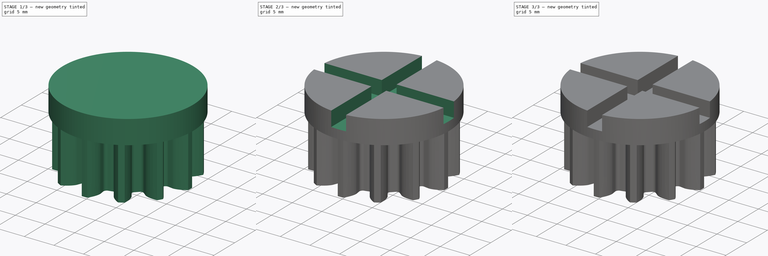
[diagram: build sequence overview — one tinted view per stage of 3, left to right]
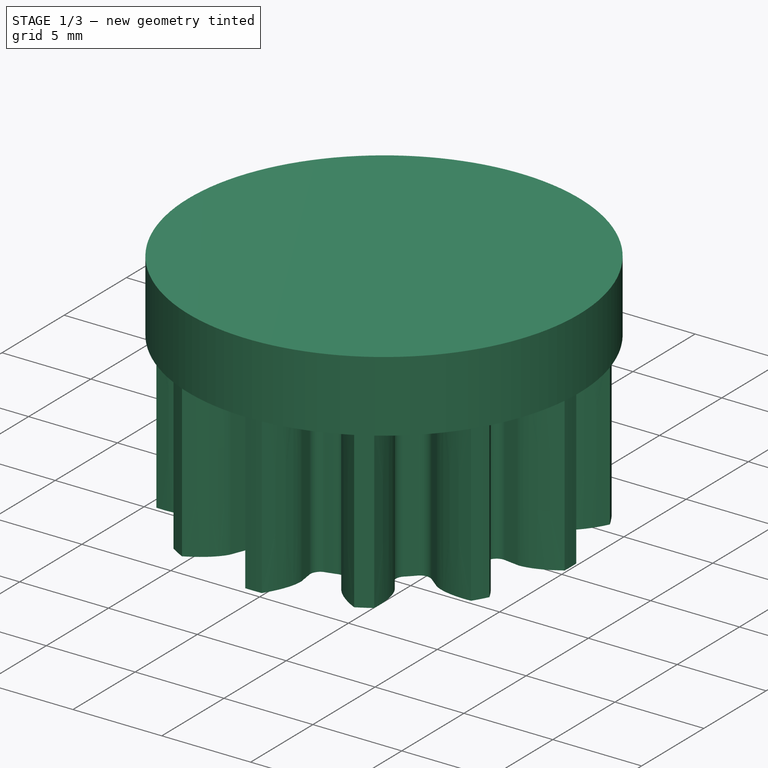
[diagram: stage 1 of 3 — iso view after this stage's code; geometry added in this stage tinted green]
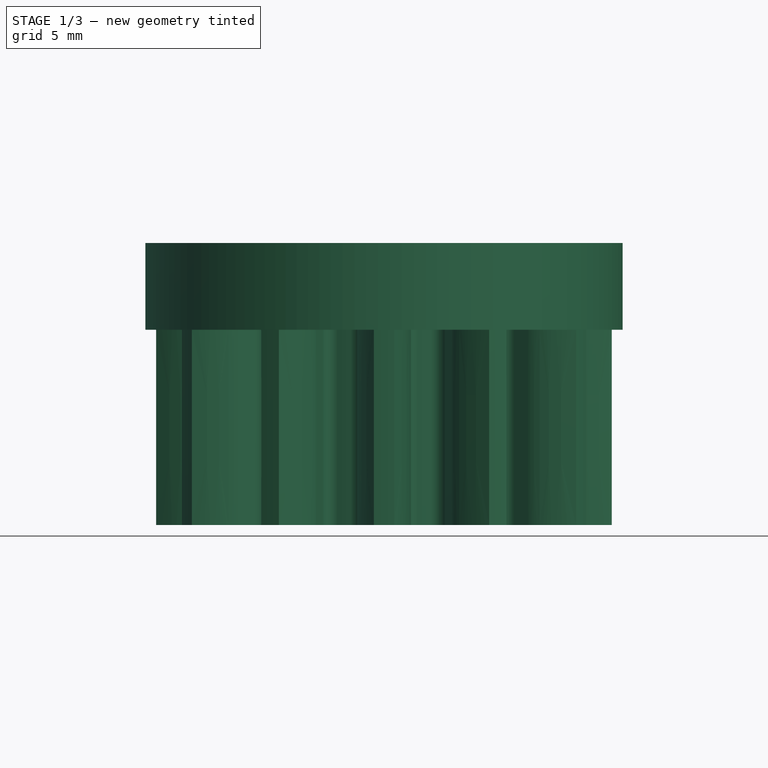
[diagram: stage 1 of 3 — front view after this stage's code; geometry added in this stage tinted green]
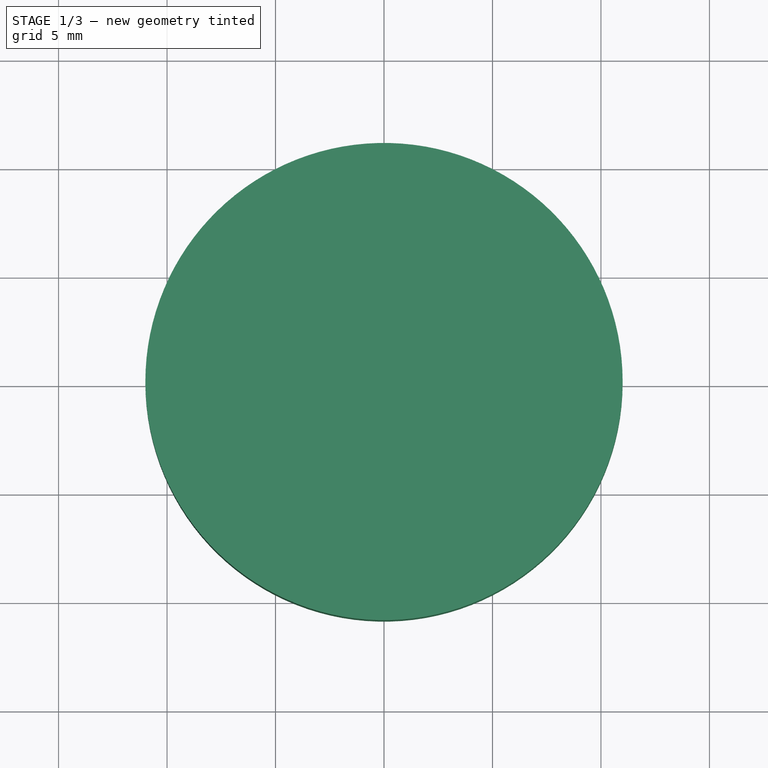
[diagram: stage 1 of 3 — top view after this stage's code; geometry added in this stage tinted green]
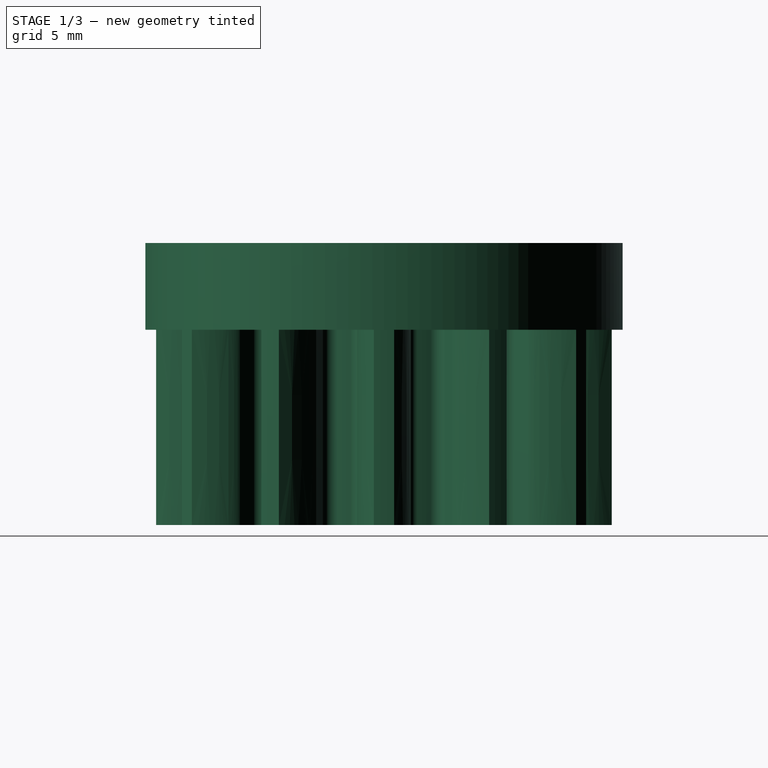
[diagram: stage 1 of 3 — right view after this stage's code; geometry added in this stage tinted green]
FCSTD DOCUMENT  (FreeCAD 0.16R6705 (Git))
Label: SunGear
License: All rights reserved
LicenseURL: http://en.wikipedia.org/wiki/All_rights_reserved
objects: Sketcher::SketchObject×5, PartDesign::Pocket×4, PartDesign::Pad×2, Part::Part2DObjectPython×1, PartDesign::Chamfer×1
note: 19 computed .brp shape members not serialized (recipe doc carries the construction recipe); baked Part::Feature solids carry a one-line shape summary decoded from their .brp

FEATURE [Part::Part2DObjectPython] InvoluteGear  # Draft 2D object (typed FeaturePython)
  ExternalGear = true
  HighPrecision = true
  Modules = 1.5
  NumberOfTeeth = 12
  PressureAngle = 20
FEATURE [PartDesign::Pad] Pad001
  Length = 9
  Length2 = 100
  Reversed = true
  Sketch = -> InvoluteGear
  Type = 0
FEATURE [Sketcher::SketchObject] Sketch
  Support = -> Pad001 [Face121]
  sketch-geometry (1):
    g0: Circle CenterX=0 CenterY=0 CenterZ=0 NormalX=0 NormalY=0 NormalZ=1 Radius=11
  constraints (2):
    c: Coincident(g0,g-1)
    c: Radius(g0) = 11
FEATURE [PartDesign::Pad] Pad
  Length = 4
  Length2 = 100
  Sketch = -> Sketch
  Type = 0
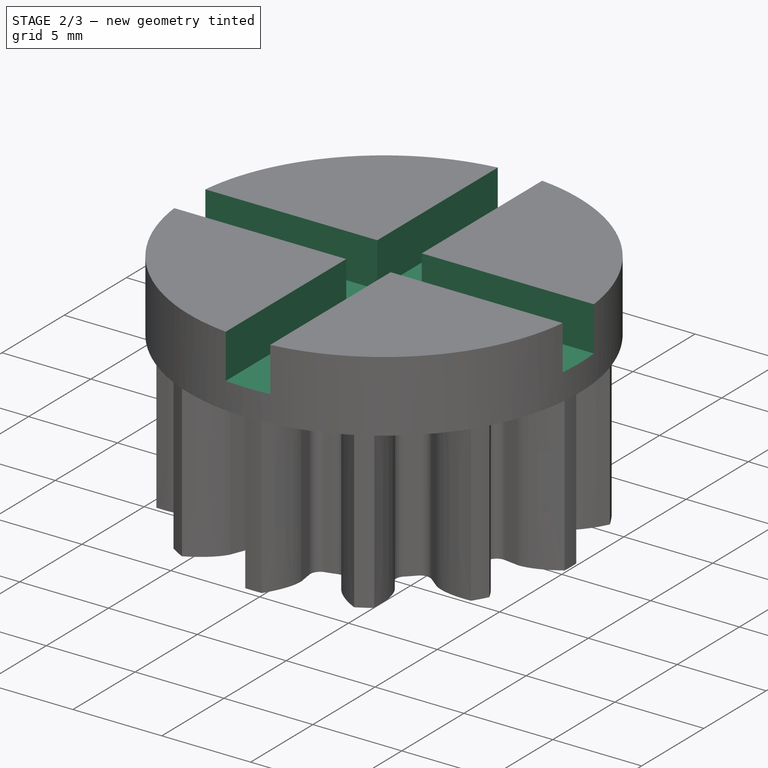
[diagram: stage 2 of 3 — iso view after this stage's code; geometry added in this stage tinted green]
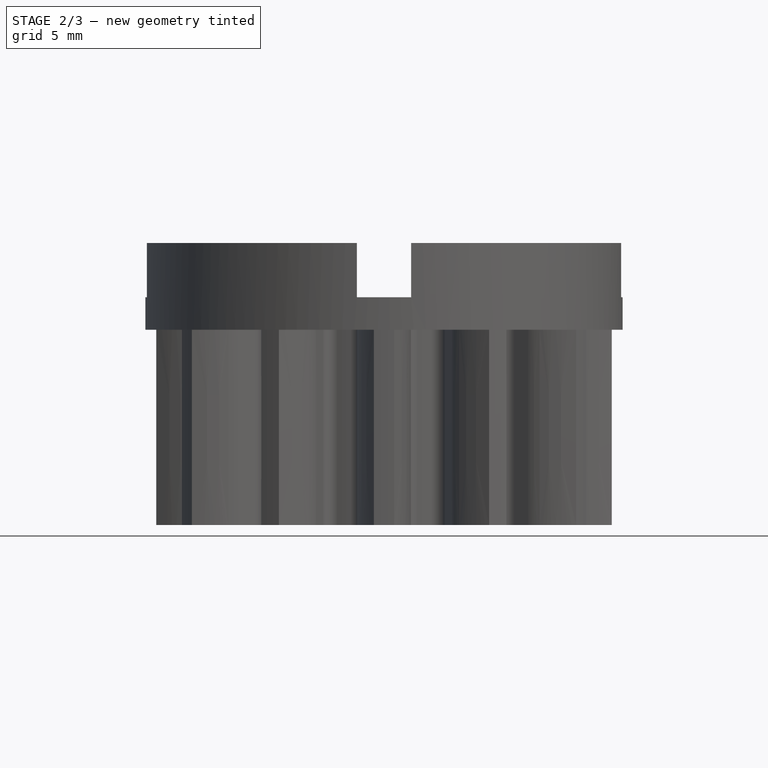
[diagram: stage 2 of 3 — front view after this stage's code; geometry added in this stage tinted green]
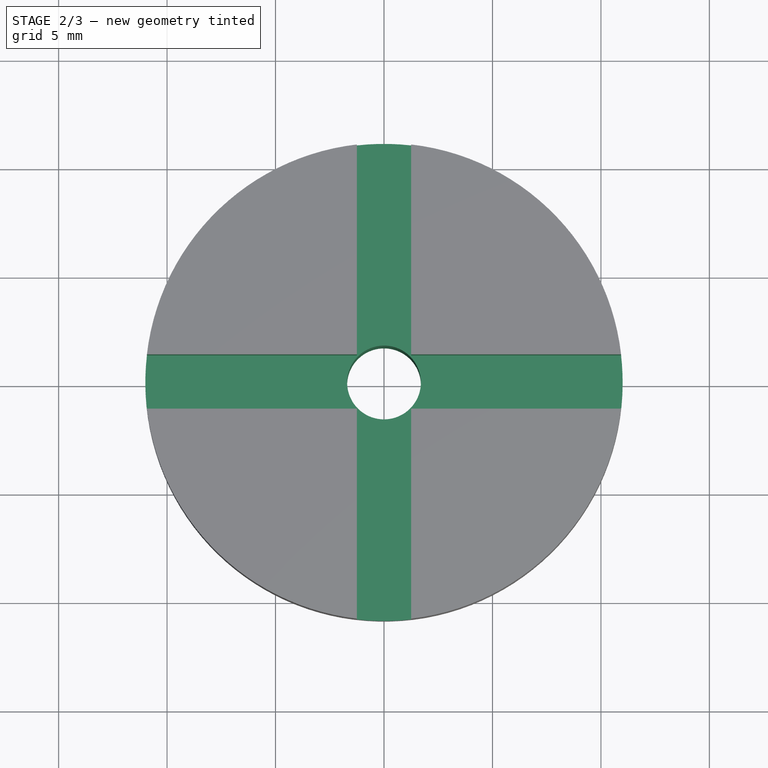
[diagram: stage 2 of 3 — top view after this stage's code; geometry added in this stage tinted green]
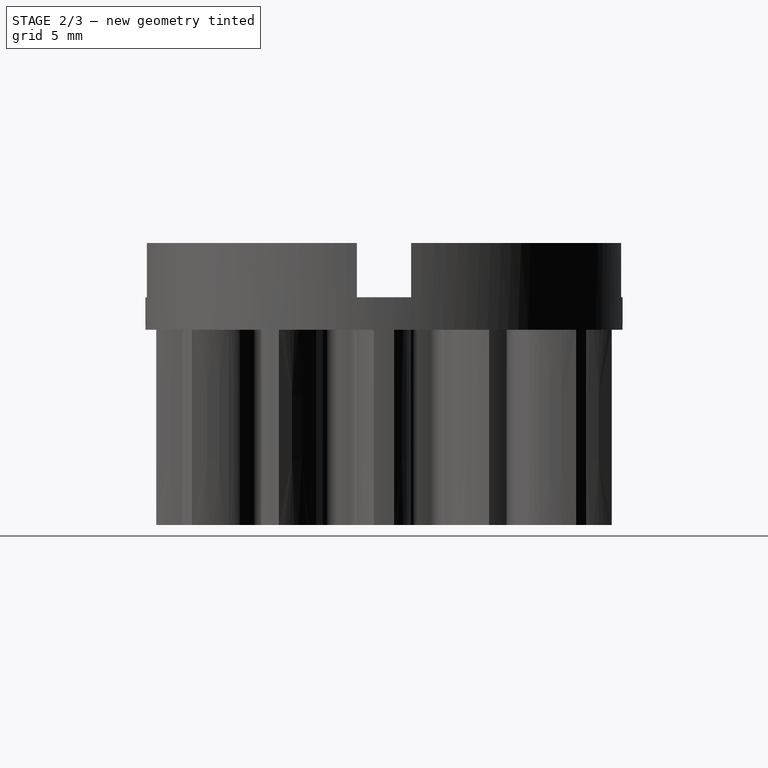
[diagram: stage 2 of 3 — right view after this stage's code; geometry added in this stage tinted green]
FEATURE [Sketcher::SketchObject] Sketch001  label="ScrewHole"
  Placement = pos=(0,0,-9) rot=(1,0,0;3.14159rad)
  Support = -> Pad [Face1]
  sketch-geometry (1):
    g0: Circle CenterX=0 CenterY=0 CenterZ=0 NormalX=0 NormalY=0 NormalZ=1 Radius=1.7
  constraints (2):
    c: Coincident(g0,g-1)
    c: Radius(g0) = 1.7
FEATURE [PartDesign::Pocket] Pocket
  Length = 5
  Sketch = -> Sketch001
  Type = 1
FEATURE [Sketcher::SketchObject] Sketch002  label="Lock"
  Placement = pos=(0,0,4) rot=(0,0,1;0rad)
  Support = -> Pocket [Face124]
  sketch-geometry (18):
    g0: LineSegment StartX=-14.9478 StartY=1.25 StartZ=0 EndX=-1.25 EndY=1.25 EndZ=0
    g1: LineSegment StartX=-1.25 StartY=1.25 StartZ=0 EndX=-1.25 EndY=14.9478 EndZ=0
    g2: LineSegment StartX=-1.25 StartY=14.9478 StartZ=0 EndX=1.25 EndY=14.9478 EndZ=0
    g3: LineSegment StartX=1.25 StartY=14.9478 StartZ=0 EndX=1.25 EndY=1.25 EndZ=0
    g4: LineSegment StartX=1.25 StartY=1.25 StartZ=0 EndX=14.9478 EndY=1.25 EndZ=0
    g5: LineSegment StartX=14.9478 StartY=1.25 StartZ=0 EndX=14.9478 EndY=-1.25 EndZ=0
    g6: LineSegment StartX=14.9478 StartY=-1.25 StartZ=0 EndX=1.25 EndY=-1.25 EndZ=0
    g7: LineSegment StartX=1.25 StartY=-1.25 StartZ=0 EndX=1.25 EndY=-14.9478 EndZ=0
    g8: LineSegment StartX=1.25 StartY=-14.9478 StartZ=0 EndX=-1.25 EndY=-14.9478 EndZ=0
    g9: LineSegment StartX=-1.25 StartY=-14.9478 StartZ=0 EndX=-1.25 EndY=-1.25 EndZ=0
    g10: LineSegment StartX=-1.25 StartY=-1.25 StartZ=0 EndX=-14.9478 EndY=-1.25 EndZ=0
    g11: LineSegment StartX=-14.9478 StartY=-1.25 StartZ=0 EndX=-14.9478 EndY=1.25 EndZ=0
    g12: LineSegment [constr] StartX=-1.25 StartY=1.25 StartZ=0 EndX=-1.25 EndY=-1.25 EndZ=0
    g13: LineSegment [constr] StartX=-1.25 StartY=-1.25 StartZ=0 EndX=1.25 EndY=-1.25 EndZ=0
    g14: LineSegment [constr] StartX=-1.25 StartY=1.25 StartZ=0 EndX=1.25 EndY=1.25 EndZ=0
    g15: LineSegment [constr] StartX=1.25 StartY=-1.25 StartZ=0 EndX=1.25 EndY=1.25 EndZ=0
    g16: LineSegment [constr] StartX=0 StartY=0 StartZ=0 EndX=1.25 EndY=1.25 EndZ=0
    g17: Circle [constr] CenterX=0 CenterY=0 CenterZ=0 NormalX=0 NormalY=0 NormalZ=1 Radius=15
  constraints (48):
    c: Coincident(g0,g1)
    c: Coincident(g1,g2)
    c: Coincident(g2,g3)
    c: Coincident(g3,g4)
    c: Horizontal(g4)
    c: Coincident(g4,g5)
    c: Vertical(g5)
    c: Coincident(g5,g6)
    c: Horizontal(g6)
    c: Coincident(g6,g7)
    c: Vertical(g7)
    c: Coincident(g7,g8)
    c: Coincident(g8,g9)
    c: Vertical(g9)
    c: Coincident(g9,g10)
    c: Horizontal(g10)
    c: Coincident(g10,g11)
    c: Coincident(g11,g0)
    c: Vertical(g1)
    c: Vertical(g3)
    c: Horizontal(g0)
    c: Vertical(g11)
    c: Horizontal(g2)
    c: Coincident(g12,g0)
    c: Coincident(g12,g9)
    c: Vertical(g12)
    c: Coincident(g13,g9)
    c: Coincident(g13,g6)
    c: Coincident(g14,g0)
    c: Coincident(g14,g3)
    c: Coincident(g15,g6)
    c: Coincident(g15,g3)
    c: Horizontal(g14)
    c: Vertical(g15)
    c: Horizontal(g13)
    c: Horizontal(g8)
    c: Symmetric(g5,g4,g-1)
    c: Symmetric(g1,g2,g-2)
    c: Coincident(g16,g-1)
    c: Coincident(g16,g3)
    c: Angle(g-1,g16) = 0.785398
    c: DistanceY(g10,g0) = 2.5
    c: Coincident(g17,g-1)
    c: PointOnObject(g2,g17)
    c: PointOnObject(g5,g17)
    c: Radius(g17) = 15
    c: PointOnObject(g0,g17)
    c: PointOnObject(g7,g17)
FEATURE [PartDesign::Pocket] Pocket001
  Length = 2.5
  Sketch = -> Sketch002
  Type = 0
FEATURE [Sketcher::SketchObject] Sketch003
  Placement = pos=(0,0,-9) rot=(1,0,0;3.14159rad)
  Support = -> Pocket001 [Face1]
  sketch-geometry (1):
    g0: Circle CenterX=0 CenterY=0 CenterZ=0 NormalX=0 NormalY=0 NormalZ=1 Radius=4
  constraints (2):
    c: Coincident(g0,g-1)
    c: Radius(g0) = 4
FEATURE [PartDesign::Pocket] Pocket002
  Length = 3
  Sketch = -> Sketch003
  Type = 0
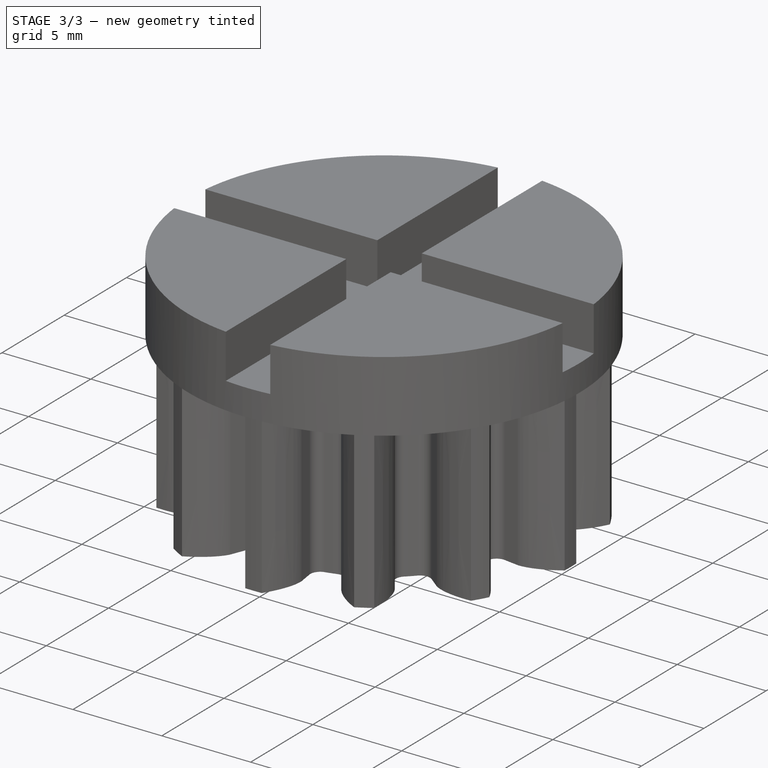
[diagram: stage 3 of 3 — iso view after this stage's code; geometry added in this stage tinted green]
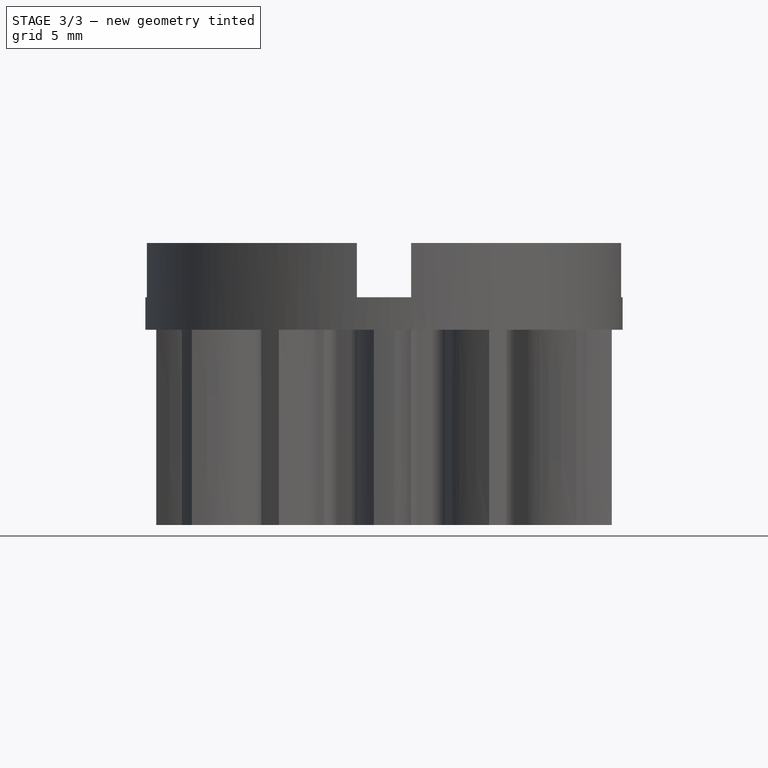
[diagram: stage 3 of 3 — front view after this stage's code; geometry added in this stage tinted green]
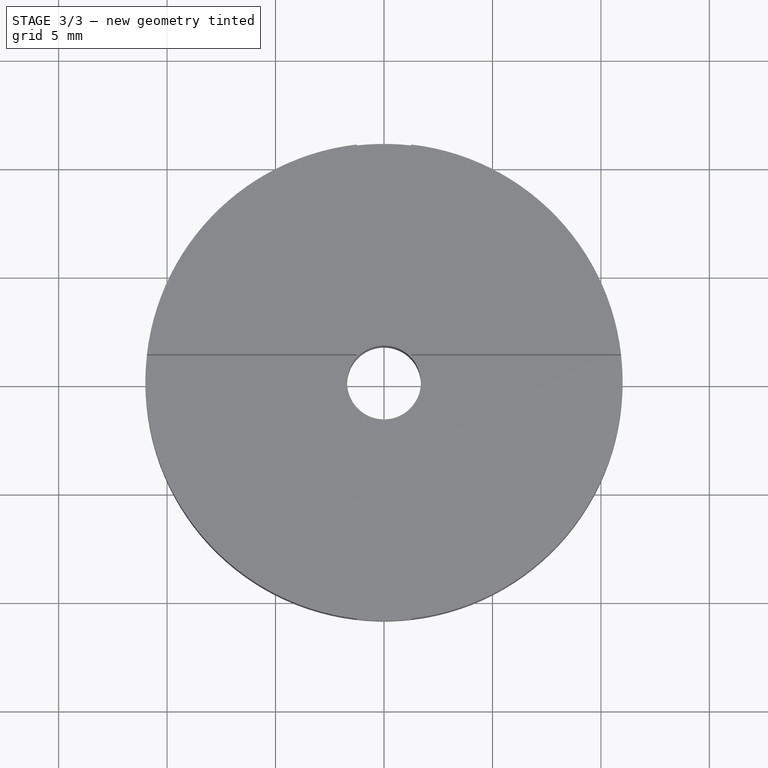
[diagram: stage 3 of 3 — top view after this stage's code; geometry added in this stage tinted green]
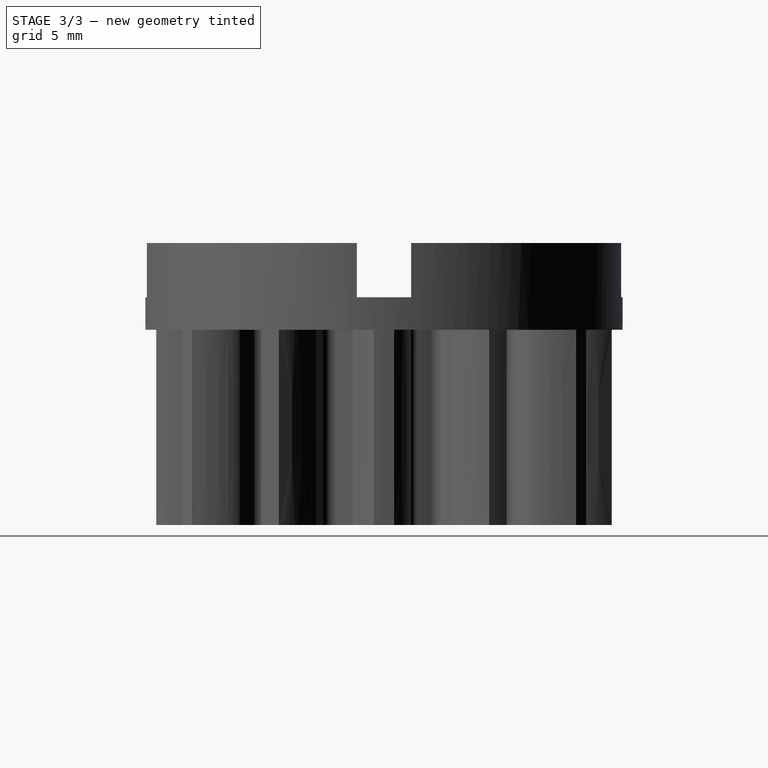
[diagram: stage 3 of 3 — right view after this stage's code; geometry added in this stage tinted green]
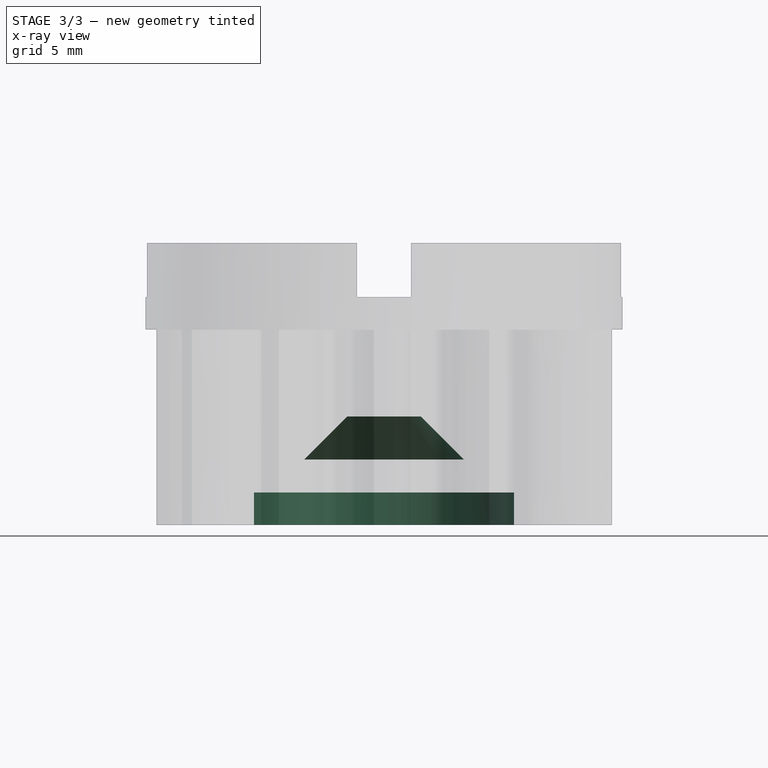
[diagram: stage 3 of 3 — x-ray composite at the front view; earlier geometry ghosted, this stage's added geometry solid]
FEATURE [PartDesign::Chamfer] Chamfer
  Base = -> Pocket002 [Edge365]
  Size = 2
FEATURE [Sketcher::SketchObject] Sketch004
  Placement = pos=(0,0,-9) rot=(1,0,0;3.14159rad)
  Support = -> Chamfer [Face5]
  sketch-geometry (1):
    g0: Circle CenterX=0 CenterY=0 CenterZ=0 NormalX=0 NormalY=0 NormalZ=1 Radius=6
  constraints (2):
    c: Coincident(g0,g-1)
    c: Radius(g0) = 6
FEATURE [PartDesign::Pocket] Pocket003
  Length = 1.5
  Sketch = -> Sketch004
  Type = 0
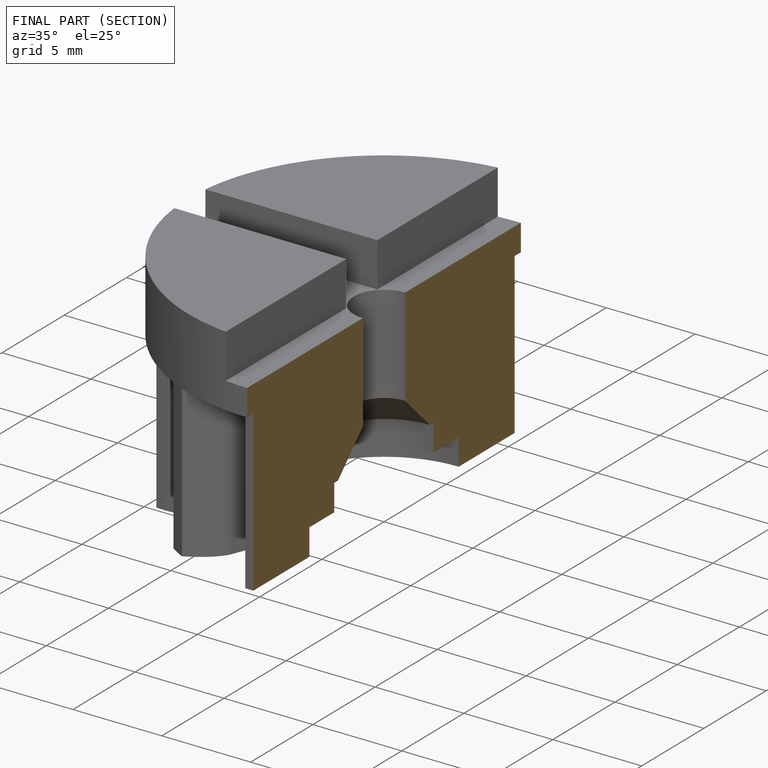
[diagram: finished part — half-section view (interior)]
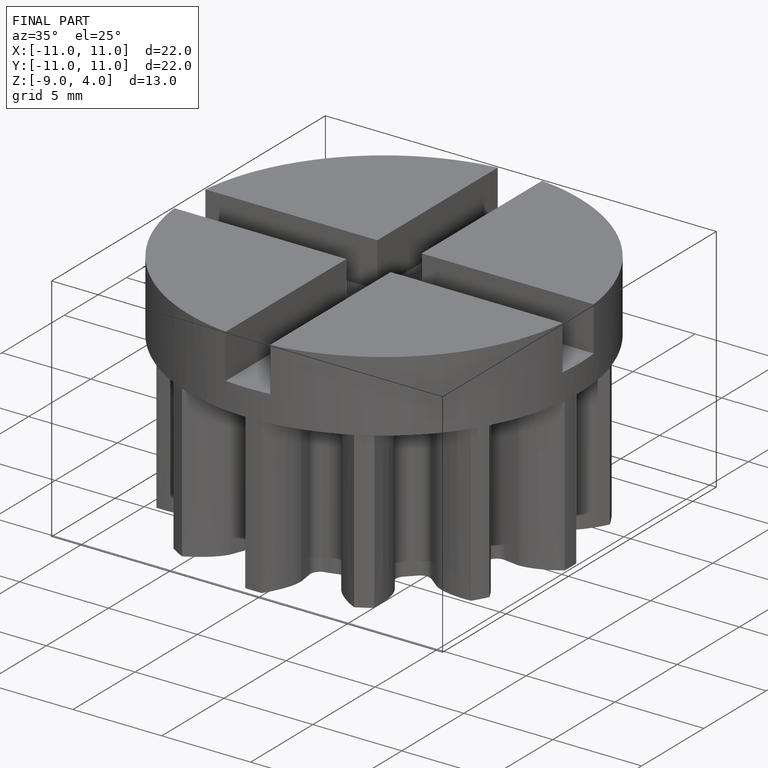
[diagram: finished part — iso view with bounding-box wireframe]
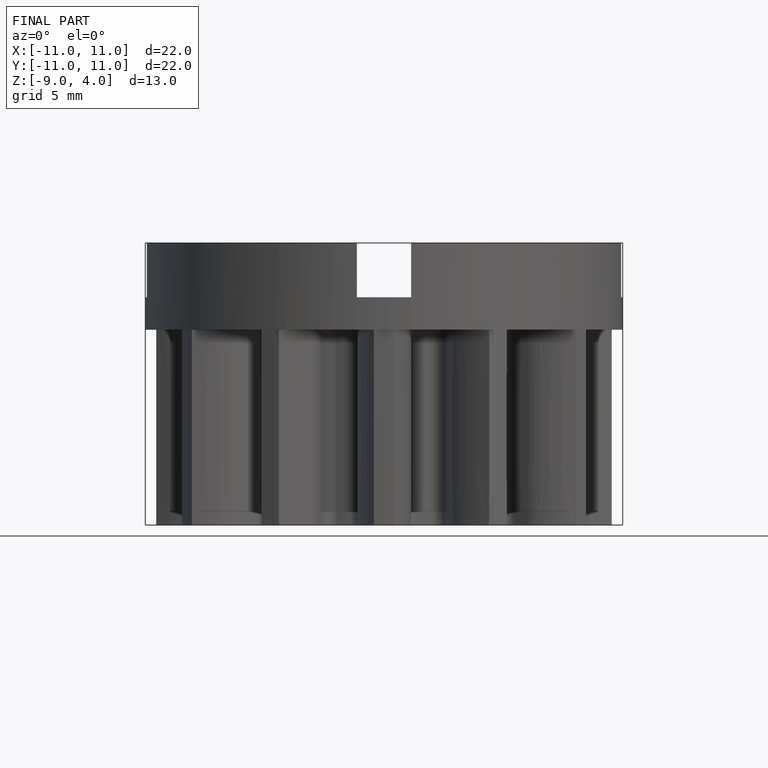
[diagram: finished part — front view with bounding-box wireframe]
